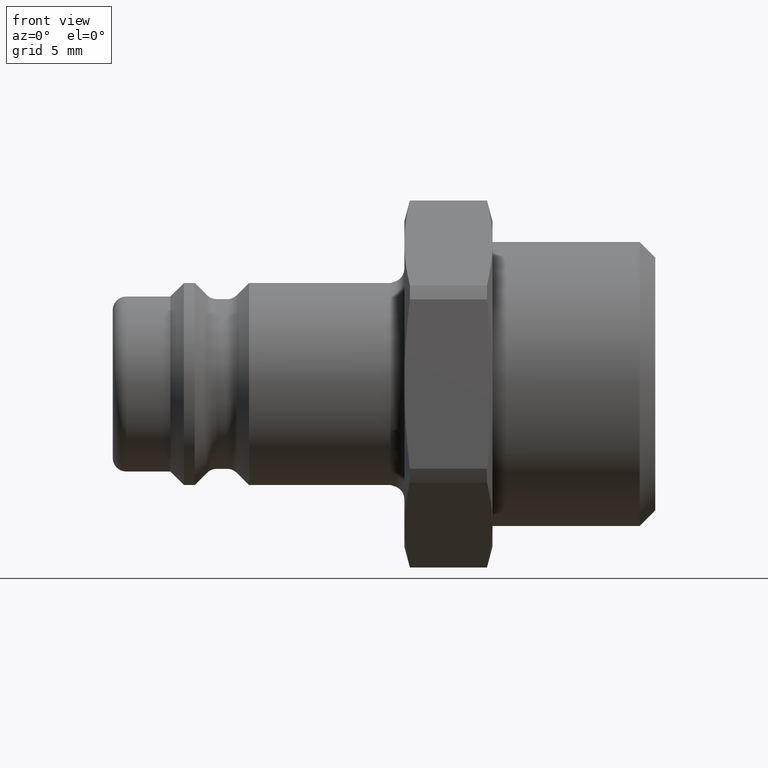
[diagram: clean part render]
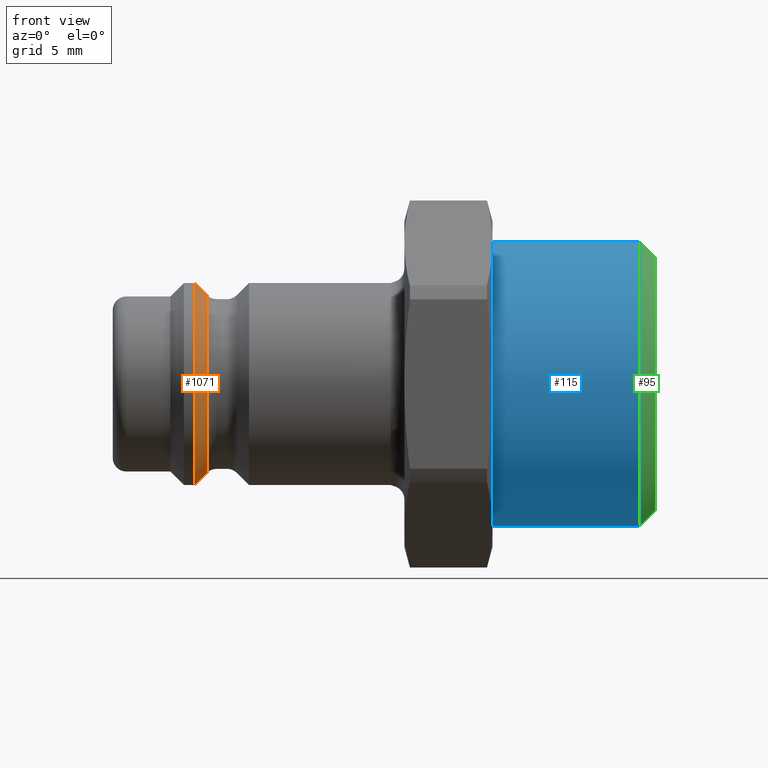
[diagram: same view with three faces highlighted in distinct colors, each labeled with its STEP entity id]
A machine part, front view with three faces highlighted in distinct colors.
Their STEP definitions:

[orange] entity #1071 — the highlighted conical surface has half-angle 45 deg.
#1037=CARTESIAN_POINT('',(6.957106781186543,6.592893218813454,1.232595E-031));
#1038=VERTEX_POINT('',#1037);
#1039=CARTESIAN_POINT('',(6.957106781186543,0.0,-8.073966E-016));
#1040=DIRECTION('',(1.0,0.0,0.0));
#1041=DIRECTION('',(0.0,-1.0,0.0));
#1042=AXIS2_PLACEMENT_3D('',#1039,#1040,#1041);
#1043=CIRCLE('',#1042,6.592893218813454);
#1044=EDGE_CURVE('',#1038,#1038,#1043,.T.);
#1052=CARTESIAN_POINT('',(6.649999999999997,0.0,0.0));
#1053=DIRECTION('',(-1.0,0.0,0.0));
#1054=DIRECTION('',(0.0,1.0,0.0));
#1055=AXIS2_PLACEMENT_3D('',#1052,#1053,#1054);
#1056=CONICAL_SURFACE('',#1055,6.9,45.000000000000021);
#1057=CARTESIAN_POINT('',(6.049999999999997,7.5,0.0));
#1058=VERTEX_POINT('',#1057);
#1059=CARTESIAN_POINT('',(6.049999999999997,0.0,0.0));
#1060=DIRECTION('',(1.0,0.0,0.0));
#1061=DIRECTION('',(0.0,1.0,0.0));
#1062=AXIS2_PLACEMENT_3D('',#1059,#1060,#1061);
#1063=CIRCLE('',#1062,7.5);
#1064=EDGE_CURVE('',#1058,#1058,#1063,.T.);
#1065=ORIENTED_EDGE('',*,*,#1064,.T.);
#1066=EDGE_LOOP('',(#1065));
#1067=FACE_OUTER_BOUND('',#1066,.T.);
#1068=ORIENTED_EDGE('',*,*,#1044,.F.);
#1069=EDGE_LOOP('',(#1068));
#1070=FACE_BOUND('',#1069,.T.);
#1071=ADVANCED_FACE('',(#1067,#1070),#1056,.T.);

[blue] entity #115 — the highlighted cylindrical surface (bore or boss wall) has radius 10.4775 mm, axis along (1, 0, 0).
#73=CARTESIAN_POINT('',(38.849999999999994,10.477500000000003,1.283124E-015));
#74=VERTEX_POINT('',#73);
#75=CARTESIAN_POINT('',(38.849999999999994,0.0,0.0));
#76=DIRECTION('',(1.0,0.0,0.0));
#77=DIRECTION('',(0.0,-1.0,0.0));
#78=AXIS2_PLACEMENT_3D('',#75,#76,#77);
#79=CIRCLE('',#78,10.477500000000003);
#80=EDGE_CURVE('',#74,#74,#79,.T.);
#96=CARTESIAN_POINT('',(34.0,0.0,0.0));
#97=DIRECTION('',(1.0,0.0,0.0));
#98=DIRECTION('',(0.0,1.0,0.0));
#99=AXIS2_PLACEMENT_3D('',#96,#97,#98);
#100=CYLINDRICAL_SURFACE('',#99,10.477500000000003);
#101=CARTESIAN_POINT('',(28.0,10.477499999999999,0.0));
#102=VERTEX_POINT('',#101);
#103=CARTESIAN_POINT('',(28.0,0.0,0.0));
#104=DIRECTION('',(1.0,0.0,0.0));
#105=DIRECTION('',(0.0,1.0,0.0));
#106=AXIS2_PLACEMENT_3D('',#103,#104,#105);
#107=CIRCLE('',#106,10.477499999999999);
#108=EDGE_CURVE('',#102,#102,#107,.T.);
#109=ORIENTED_EDGE('',*,*,#108,.T.);
#110=EDGE_LOOP('',(#109));
#111=FACE_OUTER_BOUND('',#110,.T.);
#112=ORIENTED_EDGE('',*,*,#80,.F.);
#113=EDGE_LOOP('',(#112));
#114=FACE_BOUND('',#113,.T.);
#115=ADVANCED_FACE('',(#111,#114),#100,.T.);

[green] entity #95 — the highlighted conical surface has half-angle 45 deg.
#68=CARTESIAN_POINT('',(39.424999999999997,0.0,0.0));
#69=DIRECTION('',(-1.0,0.0,0.0));
#70=DIRECTION('',(0.0,-1.0,0.0));
#71=AXIS2_PLACEMENT_3D('',#68,#69,#70);
#72=CONICAL_SURFACE('',#71,9.902500000000002,44.999999999999943);
#73=CARTESIAN_POINT('',(38.849999999999994,10.477500000000003,1.283124E-015));
#74=VERTEX_POINT('',#73);
#75=CARTESIAN_POINT('',(38.849999999999994,0.0,0.0));
#76=DIRECTION('',(1.0,0.0,0.0));
#77=DIRECTION('',(0.0,-1.0,0.0));
#78=AXIS2_PLACEMENT_3D('',#75,#76,#77);
#79=CIRCLE('',#78,10.477500000000003);
#80=EDGE_CURVE('',#74,#74,#79,.T.);
#81=ORIENTED_EDGE('',*,*,#80,.T.);
#82=EDGE_LOOP('',(#81));
#83=FACE_OUTER_BOUND('',#82,.T.);
#84=CARTESIAN_POINT('',(40.0,9.327500000000002,-1.142289E-015));
#85=VERTEX_POINT('',#84);
#86=CARTESIAN_POINT('',(40.0,0.0,0.0));
#87=DIRECTION('',(-1.0,0.0,0.0));
#88=DIRECTION('',(0.0,-1.0,0.0));
#89=AXIS2_PLACEMENT_3D('',#86,#87,#88);
#90=CIRCLE('',#89,9.327500000000002);
#91=EDGE_CURVE('',#85,#85,#90,.T.);
#92=ORIENTED_EDGE('',*,*,#91,.T.);
#93=EDGE_LOOP('',(#92));
#94=FACE_BOUND('',#93,.T.);
#95=ADVANCED_FACE('',(#83,#94),#72,.T.);